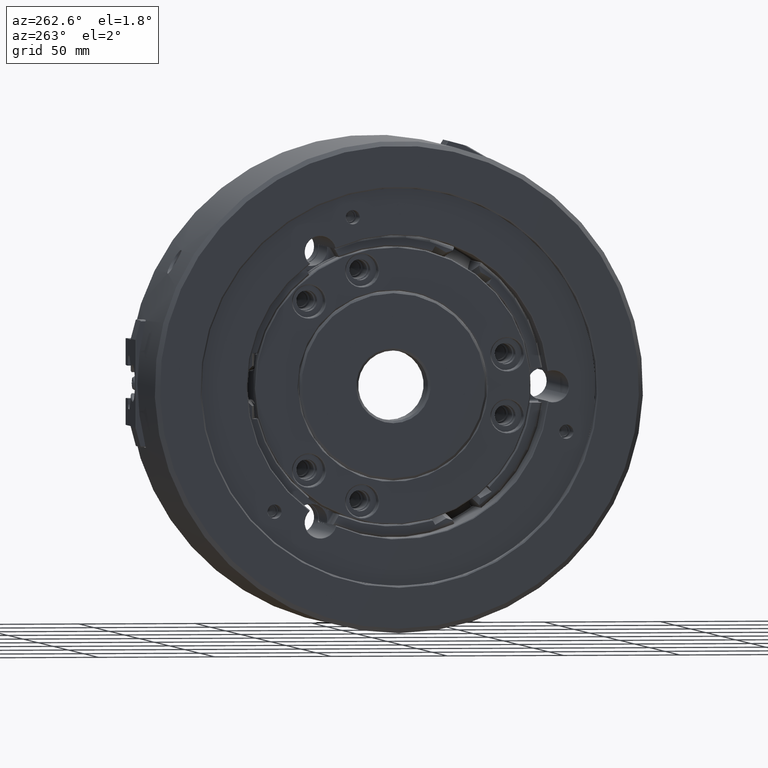
[diagram: clean part render]
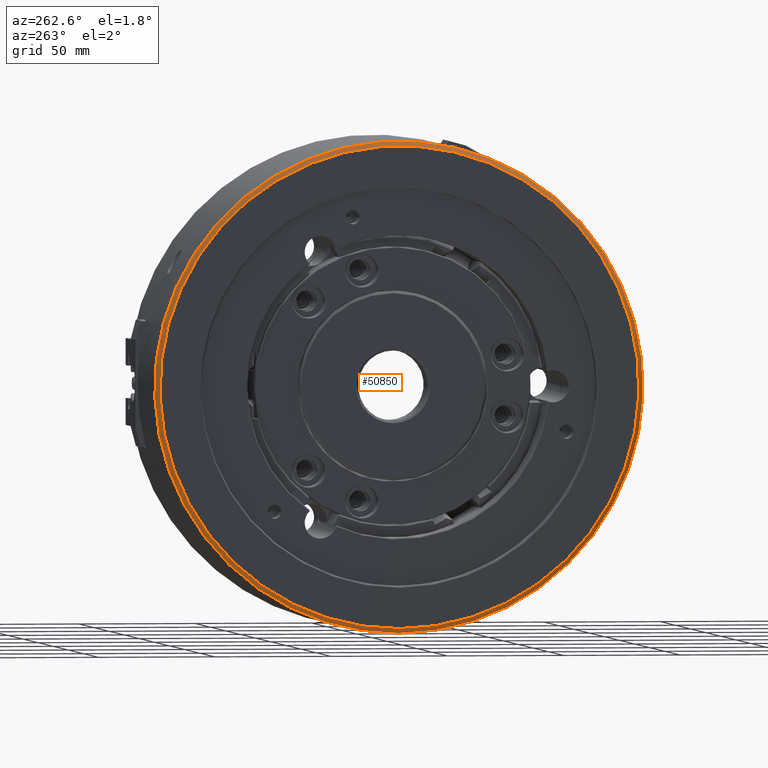
[diagram: same view with one face highlighted and labeled with its STEP entity id]
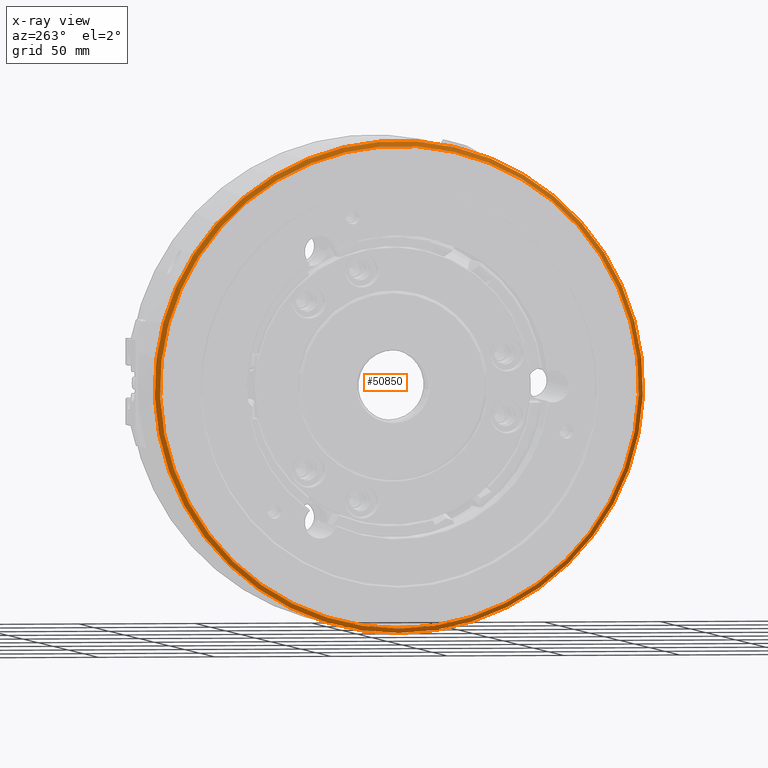
[diagram: x-ray of the same camera — body ghosted, the highlighted face saturated]
A machine part, auxiliary view. The second image highlights one B-rep face of the part: STEP entity #50850.
The next image is the same camera in x-ray: the body ghosted, the highlighted face saturated — about 0% of this face is hidden behind the body in this view.
In plain terms, the highlighted conical surface has half-angle 45 deg.
Its self-contained STEP definition (entity closure, byte-faithful):
#154=CONICAL_SURFACE('',#53042,105.,0.785398163397441);
#2396=CIRCLE('',#53043,105.);
#2397=CIRCLE('',#53044,103.);
#11789=ORIENTED_EDGE('',*,*,#22984,.F.);
#11790=ORIENTED_EDGE('',*,*,#22985,.T.);
#22984=EDGE_CURVE('',#28578,#28578,#2396,.T.);
#22985=EDGE_CURVE('',#28579,#28579,#2397,.T.);
#28578=VERTEX_POINT('',#67252);
#28579=VERTEX_POINT('',#67254);
#32086=EDGE_LOOP('',(#11789));
#32087=EDGE_LOOP('',(#11790));
#34365=FACE_BOUND('',#32086,.T.);
#34366=FACE_BOUND('',#32087,.T.);
#50850=ADVANCED_FACE('',(#34365,#34366),#154,.T.);
#53042=AXIS2_PLACEMENT_3D('',#67250,#56688,#56689);
#53043=AXIS2_PLACEMENT_3D('',#67251,#56690,#56691);
#53044=AXIS2_PLACEMENT_3D('',#67253,#56692,#56693);
#56688=DIRECTION('',(1.,0.,0.));
#56689=DIRECTION('',(0.,0.,-1.));
#56690=DIRECTION('',(1.,0.,0.));
#56691=DIRECTION('',(0.,0.,-1.));
#56692=DIRECTION('',(1.,0.,0.));
#56693=DIRECTION('',(0.,0.,-1.));
#67250=CARTESIAN_POINT('',(-89.,0.,0.));
#67251=CARTESIAN_POINT('',(-89.,0.,0.));
#67252=CARTESIAN_POINT('',(-89.,0.,-105.));
#67253=CARTESIAN_POINT('',(-91.,0.,0.));
#67254=CARTESIAN_POINT('',(-91.,0.,-103.));